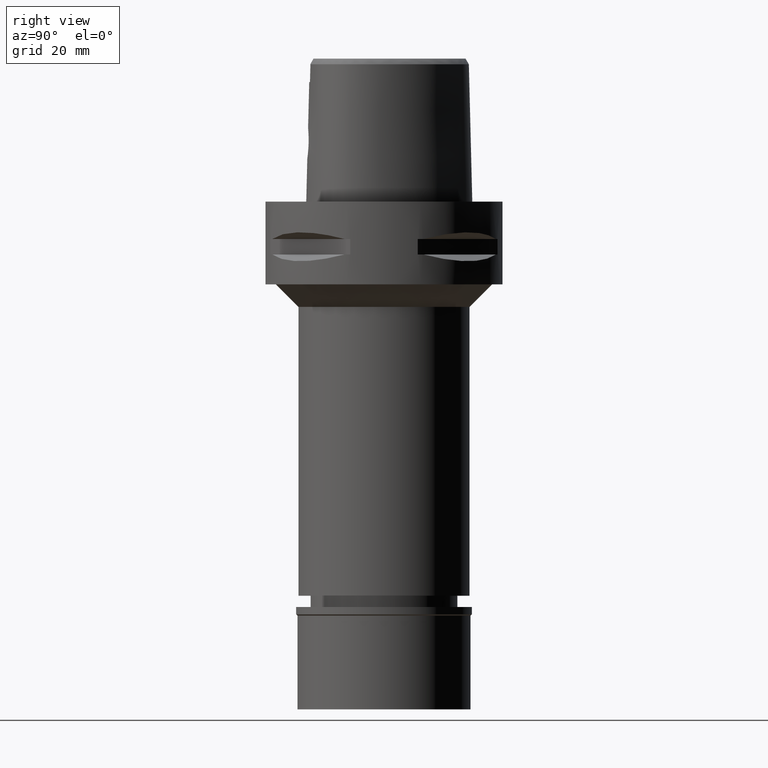
[diagram: clean part render]
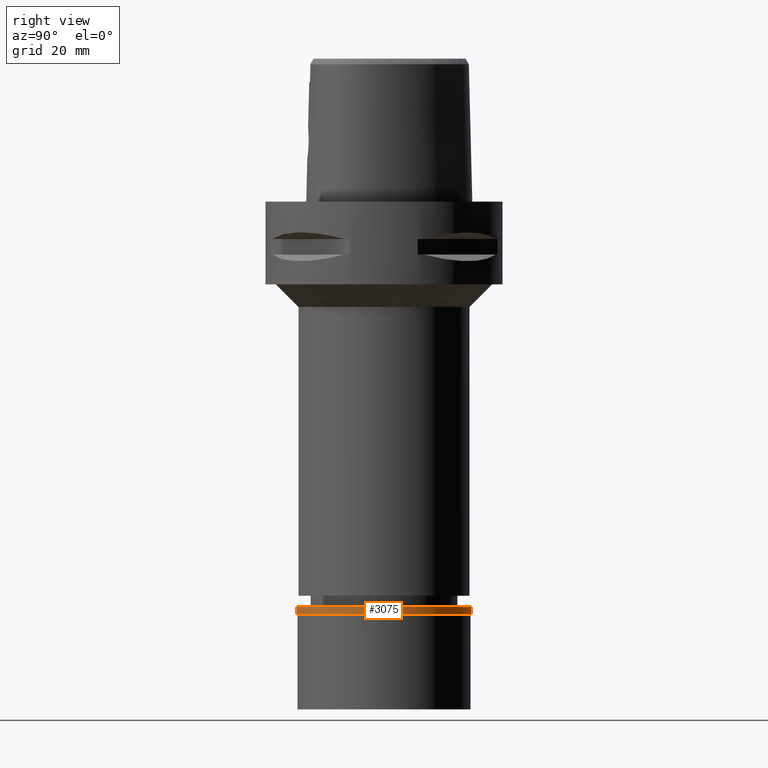
[diagram: same view with one face highlighted and labeled with its STEP entity id]
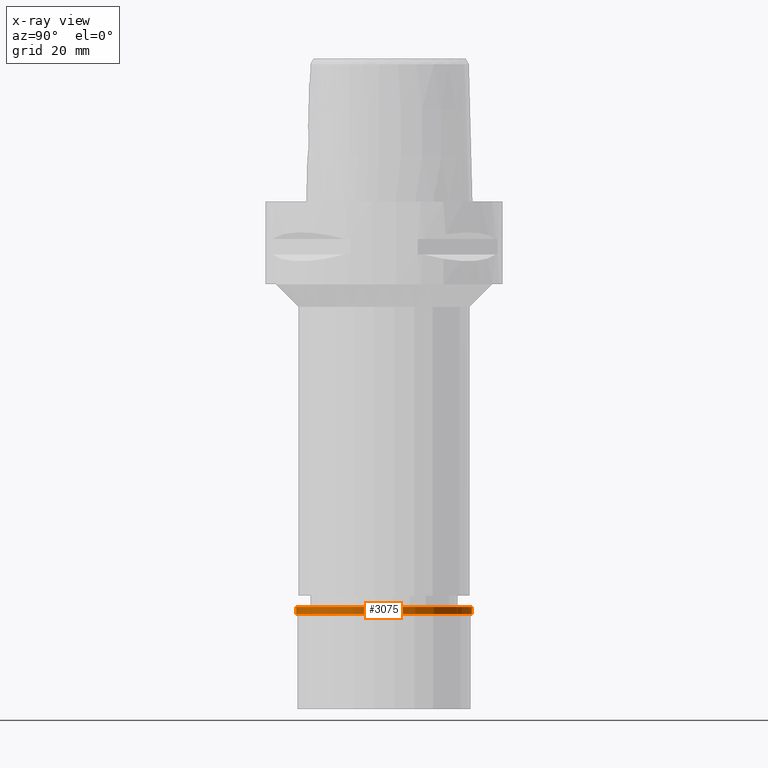
[diagram: x-ray of the same camera — body ghosted, the highlighted face saturated]
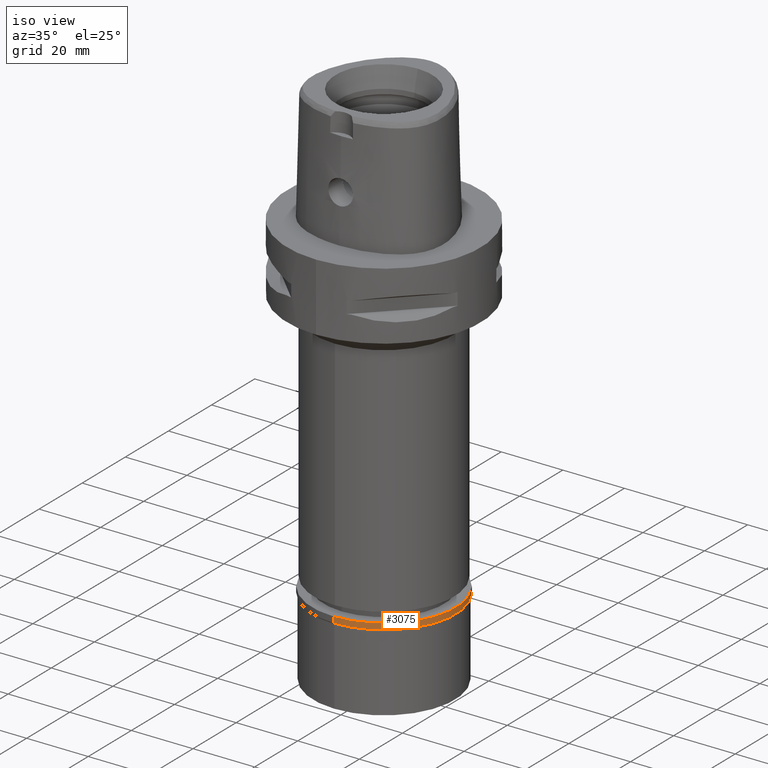
[diagram: same view with one face highlighted and labeled with its STEP entity id]
A machine part, right view. The second image highlights one B-rep face of the part: STEP entity #3075.
The next image is the same camera in x-ray: the body ghosted, the highlighted face saturated — about 0% of this face is hidden behind the body in this view.
A second angle (iso view) of the same face is appended — the face is thin or edge-on in the first view.
In plain terms, the highlighted cylindrical surface (partial cylindrical patch) has radius 23.35 mm, axis along (0, 0, -1).
Its self-contained STEP definition (entity closure, byte-faithful):
#95 = AXIS2_PLACEMENT_3D ( 'NONE', #238, #1961, #734 ) ;
#107 = LINE ( 'NONE', #2033, #3987 ) ;
#238 = CARTESIAN_POINT ( 'NONE',  ( 0.0000000000000000000, 0.0000000000000000000, -1.949999999999999956 ) ) ;
#373 = VERTEX_POINT ( 'NONE', #3532 ) ;
#442 = EDGE_CURVE ( 'NONE', #3043, #471, #107, .T. ) ;
#471 = VERTEX_POINT ( 'NONE', #1977 ) ;
#734 = DIRECTION ( 'NONE',  ( 0.0000000000000000000, -1.000000000000000000, 0.0000000000000000000 ) ) ;
#803 = ORIENTED_EDGE ( 'NONE', *, *, #442, .F. ) ;
#982 = VECTOR ( 'NONE', #4575, 1000.000000000000000 ) ;
#1203 = CARTESIAN_POINT ( 'NONE',  ( 0.0000000000000000000, 0.0000000000000000000, 0.0000000000000000000 ) ) ;
#1230 = CARTESIAN_POINT ( 'NONE',  ( 0.0000000000000000000, -23.34999999999999787, 0.0000000000000000000 ) ) ;
#1257 = DIRECTION ( 'NONE',  ( 0.0000000000000000000, -1.000000000000000000, 0.0000000000000000000 ) ) ;
#1961 = DIRECTION ( 'NONE',  ( 0.0000000000000000000, 0.0000000000000000000, 1.000000000000000000 ) ) ;
#1977 = CARTESIAN_POINT ( 'NONE',  ( 0.0000000000000000000, 23.34999999999999787, -1.949999999999999956 ) ) ;
#2033 = CARTESIAN_POINT ( 'NONE',  ( 0.0000000000000000000, 23.34999999999999787, 0.0000000000000000000 ) ) ;
#2211 = CARTESIAN_POINT ( 'NONE',  ( 0.0000000000000000000, 0.0000000000000000000, 0.0000000000000000000 ) ) ;
#2246 = AXIS2_PLACEMENT_3D ( 'NONE', #1203, #2347, #1257 ) ;
#2347 = DIRECTION ( 'NONE',  ( 0.0000000000000000000, 0.0000000000000000000, -1.000000000000000000 ) ) ;
#2597 = DIRECTION ( 'NONE',  ( 0.0000000000000000000, 1.000000000000000000, 0.0000000000000000000 ) ) ;
#2712 = EDGE_LOOP ( 'NONE', ( #3215, #4368, #4311, #803 ) ) ;
#3010 = EDGE_CURVE ( 'NONE', #3013, #373, #3887, .T. ) ;
#3013 = VERTEX_POINT ( 'NONE', #4599 ) ;
#3043 = VERTEX_POINT ( 'NONE', #4194 ) ;
#3054 = CIRCLE ( 'NONE', #3767, 23.34999999999999787 ) ;
#3075 = ADVANCED_FACE ( 'NONE', ( #3142 ), #4672, .T. ) ;
#3142 = FACE_OUTER_BOUND ( 'NONE', #2712, .T. ) ;
#3215 = ORIENTED_EDGE ( 'NONE', *, *, #3396, .T. ) ;
#3396 = EDGE_CURVE ( 'NONE', #3043, #3013, #3054, .T. ) ;
#3532 = CARTESIAN_POINT ( 'NONE',  ( 0.0000000000000000000, -23.34999999999999787, -1.949999999999999956 ) ) ;
#3767 = AXIS2_PLACEMENT_3D ( 'NONE', #2211, #4540, #2597 ) ;
#3887 = LINE ( 'NONE', #1230, #982 ) ;
#3987 = VECTOR ( 'NONE', #4684, 1000.000000000000000 ) ;
#4194 = CARTESIAN_POINT ( 'NONE',  ( 0.0000000000000000000, 23.34999999999999787, 0.0000000000000000000 ) ) ;
#4311 = ORIENTED_EDGE ( 'NONE', *, *, #4529, .T. ) ;
#4368 = ORIENTED_EDGE ( 'NONE', *, *, #3010, .T. ) ;
#4529 = EDGE_CURVE ( 'NONE', #373, #471, #4809, .T. ) ;
#4540 = DIRECTION ( 'NONE',  ( 0.0000000000000000000, 0.0000000000000000000, -1.000000000000000000 ) ) ;
#4575 = DIRECTION ( 'NONE',  ( 0.0000000000000000000, 0.0000000000000000000, -1.000000000000000000 ) ) ;
#4599 = CARTESIAN_POINT ( 'NONE',  ( 0.0000000000000000000, -23.34999999999999787, 0.0000000000000000000 ) ) ;
#4672 = CYLINDRICAL_SURFACE ( 'NONE', #2246, 23.34999999999999787 ) ;
#4684 = DIRECTION ( 'NONE',  ( 0.0000000000000000000, 0.0000000000000000000, -1.000000000000000000 ) ) ;
#4809 = CIRCLE ( 'NONE', #95, 23.34999999999999787 ) ;